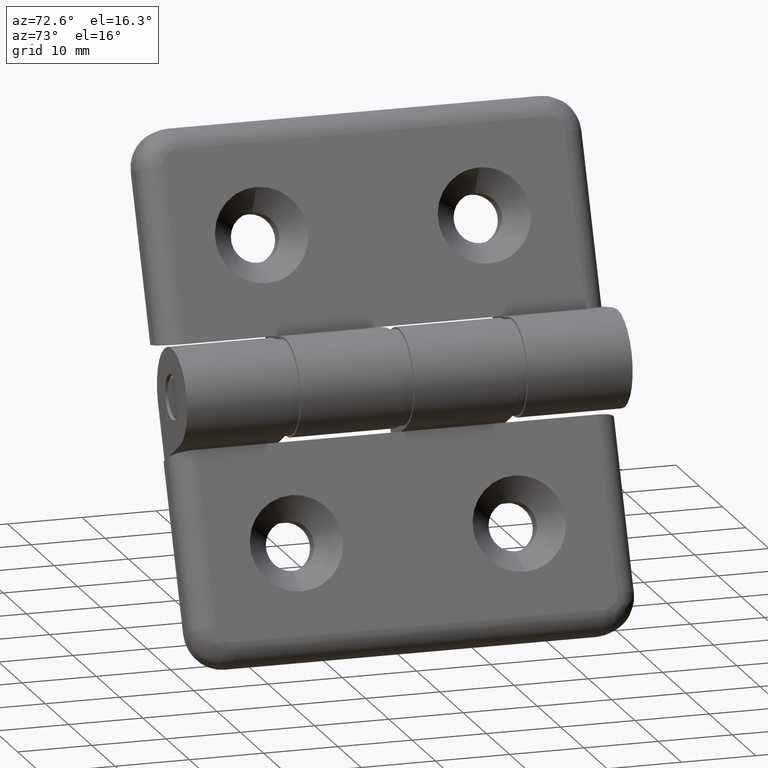
[diagram: clean part render]
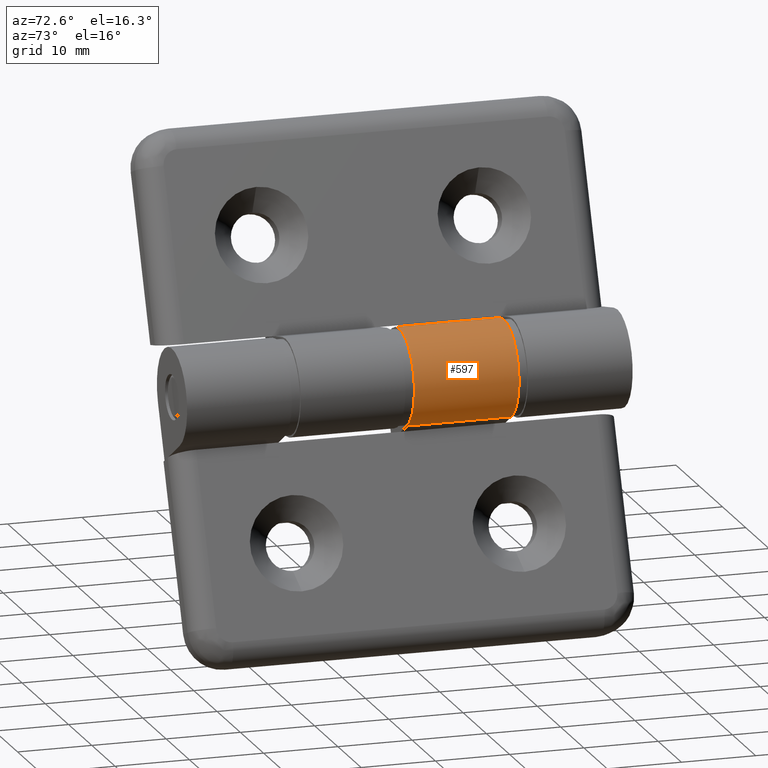
[diagram: same view with one face highlighted and labeled with its STEP entity id]
A machine part, auxiliary view. The second image highlights one B-rep face of the part: STEP entity #597.
In plain terms, the highlighted cylindrical surface (partial cylindrical patch) has radius 6.5 mm, axis along (-0, 1, 0).
Its self-contained STEP definition (entity closure, byte-faithful):
#105=LINE('',#1032,#142);
#106=LINE('',#1034,#143);
#142=VECTOR('',#826,14.1);
#143=VECTOR('',#829,14.1);
#153=CYLINDRICAL_SURFACE('',#662,6.5);
#204=FACE_OUTER_BOUND('',#254,.T.);
#254=EDGE_LOOP('',(#544,#545,#546,#547));
#294=CIRCLE('',#656,6.5);
#296=CIRCLE('',#659,6.5);
#343=VERTEX_POINT('',#1016);
#344=VERTEX_POINT('',#1017);
#346=VERTEX_POINT('',#1024);
#347=VERTEX_POINT('',#1025);
#410=EDGE_CURVE('',#343,#344,#294,.T.);
#414=EDGE_CURVE('',#346,#347,#296,.T.);
#418=EDGE_CURVE('',#346,#344,#105,.T.);
#419=EDGE_CURVE('',#347,#343,#106,.T.);
#544=ORIENTED_EDGE('',*,*,#410,.T.);
#545=ORIENTED_EDGE('',*,*,#418,.F.);
#546=ORIENTED_EDGE('',*,*,#414,.T.);
#547=ORIENTED_EDGE('',*,*,#419,.T.);
#597=ADVANCED_FACE('',(#204),#153,.T.);
#656=AXIS2_PLACEMENT_3D('',#1018,#810,#811);
#659=AXIS2_PLACEMENT_3D('',#1026,#818,#819);
#662=AXIS2_PLACEMENT_3D('',#1033,#827,#828);
#810=DIRECTION('center_axis',(0.,-1.,0.));
#811=DIRECTION('ref_axis',(0.,0.,-1.));
#818=DIRECTION('center_axis',(0.,1.,0.));
#819=DIRECTION('ref_axis',(0.,0.,-1.));
#826=DIRECTION('',(0.,1.,0.));
#827=DIRECTION('center_axis',(0.,1.,0.));
#828=DIRECTION('ref_axis',(0.,0.,-1.));
#829=DIRECTION('',(0.,1.,0.));
#1016=CARTESIAN_POINT('',(-1.06598984771574,44.7,7.92385786802031));
#1017=CARTESIAN_POINT('',(-7.5,44.7,0.5));
#1018=CARTESIAN_POINT('Origin',(-7.5,44.7,7.));
#1024=CARTESIAN_POINT('',(-7.5,30.6,0.500000000000002));
#1025=CARTESIAN_POINT('',(-1.06598984771574,30.6,7.92385786802031));
#1026=CARTESIAN_POINT('Origin',(-7.5,30.6,7.));
#1032=CARTESIAN_POINT('',(-7.5,0.,0.500000000000001));
#1033=CARTESIAN_POINT('Origin',(-7.5,0.,7.));
#1034=CARTESIAN_POINT('',(-1.06598984771574,0.,7.92385786802031));